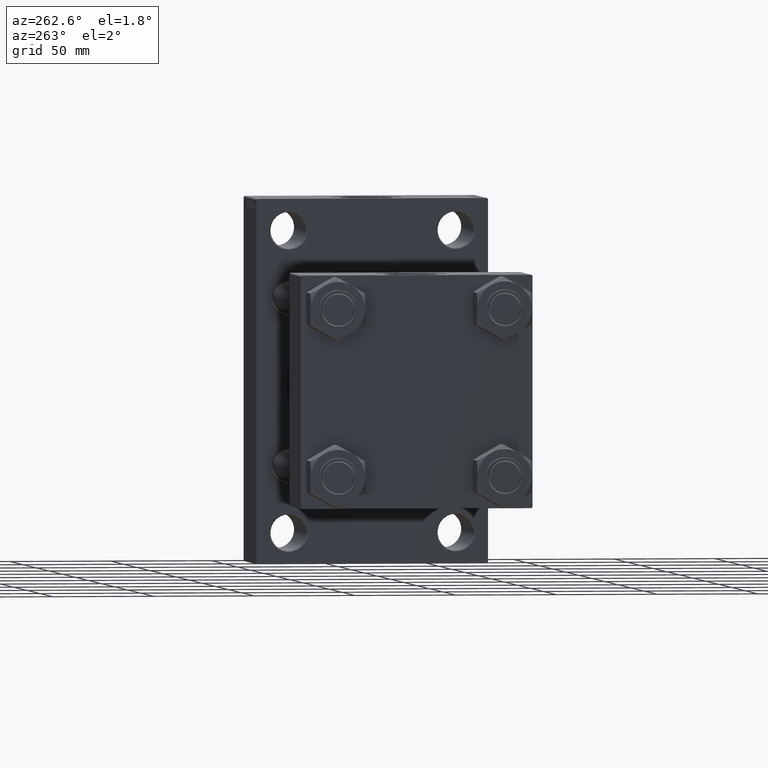
[diagram: clean part render]
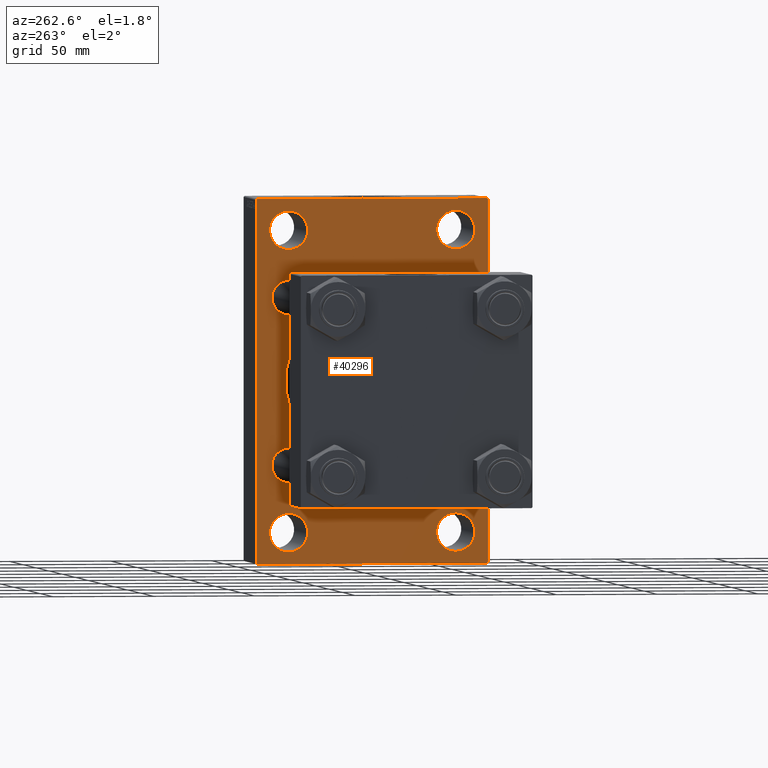
[diagram: same view with one face highlighted and labeled with its STEP entity id]
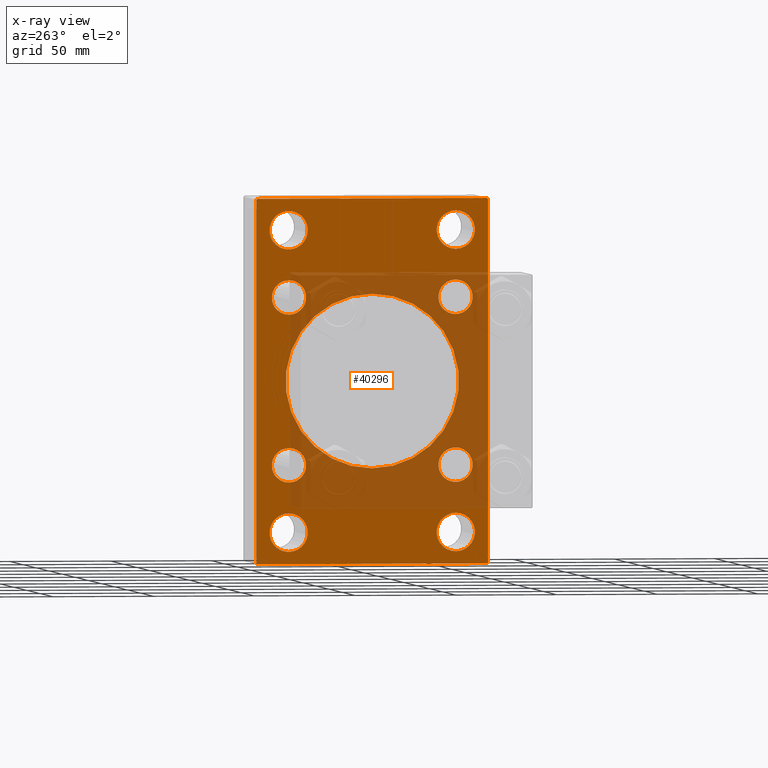
[diagram: x-ray of the same camera — body ghosted, the highlighted face saturated]
A machine part, auxiliary view. The second image highlights one B-rep face of the part: STEP entity #40296.
The next image is the same camera in x-ray: the body ghosted, the highlighted face saturated — about 39% of this face is hidden behind the body in this view.
In plain terms, the highlighted planar face has unit normal (-1, 0, 0).
Its self-contained STEP definition (entity closure, byte-faithful):
#796 = CARTESIAN_POINT ( 'NONE',  ( 169.9999999999999716, 41.49999999999999289, -74.49999999999998579 ) ) ;
#1082 = CARTESIAN_POINT ( 'NONE',  ( 169.9999999999999716, 41.49999999999999289, -83.99999999999998579 ) ) ;
#1093 = CARTESIAN_POINT ( 'NONE',  ( 169.9999999999999716, -41.34999999999998721, 49.85000000000001563 ) ) ;
#1111 = DIRECTION ( 'NONE',  ( 0.000000000000000000, 0.000000000000000000, -1.000000000000000000 ) ) ;
#1664 = CARTESIAN_POINT ( 'NONE',  ( 169.9999999999999716, -56.99999999999994316, 90.00000000000000000 ) ) ;
#1731 = AXIS2_PLACEMENT_3D ( 'NONE', #3899, #44387, #41250 ) ;
#1748 = CIRCLE ( 'NONE', #8694, 9.500000000000008882 ) ;
#1926 = CARTESIAN_POINT ( 'NONE',  ( 169.9999999999999716, 2.663896022368408223E-15, -43.00000000000000000 ) ) ;
#1937 = EDGE_LOOP ( 'NONE', ( #3497, #2461 ) ) ;
#2389 = LINE ( 'NONE', #38336, #41527 ) ;
#2461 = ORIENTED_EDGE ( 'NONE', *, *, #34330, .T. ) ;
#2776 = CARTESIAN_POINT ( 'NONE',  ( 169.9999999999999716, -57.50000000000000000, -89.49999999999991473 ) ) ;
#2838 = EDGE_LOOP ( 'NONE', ( #27087, #18156 ) ) ;
#2928 = EDGE_CURVE ( 'NONE', #15701, #36372, #40823, .T. ) ;
#2967 = DIRECTION ( 'NONE',  ( 1.000000000000000000, 0.000000000000000000, 0.000000000000000000 ) ) ;
#3497 = ORIENTED_EDGE ( 'NONE', *, *, #7788, .T. ) ;
#3566 = EDGE_LOOP ( 'NONE', ( #5495, #41740, #30726, #47436, #34863, #42800, #15348, #7408 ) ) ;
#3899 = CARTESIAN_POINT ( 'NONE',  ( 169.9999999999999716, -41.50000000000000711, -74.49999999999998579 ) ) ;
#4073 = CIRCLE ( 'NONE', #26392, 8.500000000000007105 ) ;
#4234 = VECTOR ( 'NONE', #34725, 1000.000000000000114 ) ;
#4320 = EDGE_CURVE ( 'NONE', #8992, #25618, #34646, .T. ) ;
#4740 = ORIENTED_EDGE ( 'NONE', *, *, #26754, .T. ) ;
#4818 = CARTESIAN_POINT ( 'NONE',  ( 169.9999999999999716, 57.50000000000000000, 90.00000000000000000 ) ) ;
#4940 = DIRECTION ( 'NONE',  ( 1.000000000000000000, 0.000000000000000000, 0.000000000000000000 ) ) ;
#5279 = DIRECTION ( 'NONE',  ( 1.000000000000000000, 0.000000000000000000, 0.000000000000000000 ) ) ;
#5456 = VERTEX_POINT ( 'NONE', #13275 ) ;
#5491 = LINE ( 'NONE', #31525, #24856 ) ;
#5495 = ORIENTED_EDGE ( 'NONE', *, *, #11113, .T. ) ;
#5793 = VERTEX_POINT ( 'NONE', #1664 ) ;
#6247 = CARTESIAN_POINT ( 'NONE',  ( 169.9999999999999716, 73.49999999999997158, 73.49999999999997158 ) ) ;
#6342 = CIRCLE ( 'NONE', #28698, 8.500000000000007105 ) ;
#6589 = FACE_BOUND ( 'NONE', #2838, .T. ) ;
#6622 = EDGE_CURVE ( 'NONE', #8228, #7629, #20875, .T. ) ;
#6807 = VERTEX_POINT ( 'NONE', #1926 ) ;
#7021 = AXIS2_PLACEMENT_3D ( 'NONE', #11480, #22341, #1111 ) ;
#7045 = DIRECTION ( 'NONE',  ( 1.000000000000000000, 0.000000000000000000, 0.000000000000000000 ) ) ;
#7064 = FACE_OUTER_BOUND ( 'NONE', #3566, .T. ) ;
#7191 = VERTEX_POINT ( 'NONE', #14372 ) ;
#7257 = DIRECTION ( 'NONE',  ( 1.000000000000000000, 0.000000000000000000, 0.000000000000000000 ) ) ;
#7324 = CARTESIAN_POINT ( 'NONE',  ( 169.9999999999999716, 41.34999999999999432, -49.85000000000000853 ) ) ;
#7408 = ORIENTED_EDGE ( 'NONE', *, *, #43483, .T. ) ;
#7523 = AXIS2_PLACEMENT_3D ( 'NONE', #10208, #39387, #47088 ) ;
#7629 = VERTEX_POINT ( 'NONE', #7324 ) ;
#7782 = ORIENTED_EDGE ( 'NONE', *, *, #9797, .T. ) ;
#7788 = EDGE_CURVE ( 'NONE', #18531, #28208, #13222, .T. ) ;
#7997 = CIRCLE ( 'NONE', #16465, 9.500000000000008882 ) ;
#8228 = VERTEX_POINT ( 'NONE', #19671 ) ;
#8256 = DIRECTION ( 'NONE',  ( 0.000000000000000000, 0.000000000000000000, -1.000000000000000000 ) ) ;
#8492 = CARTESIAN_POINT ( 'NONE',  ( 169.9999999999999716, -73.49999999999995737, 73.49999999999995737 ) ) ;
#8694 = AXIS2_PLACEMENT_3D ( 'NONE', #20097, #15995, #8753 ) ;
#8750 = VERTEX_POINT ( 'NONE', #33308 ) ;
#8753 = DIRECTION ( 'NONE',  ( 0.000000000000000000, 0.000000000000000000, 1.000000000000000000 ) ) ;
#8992 = VERTEX_POINT ( 'NONE', #12022 ) ;
#9009 = CARTESIAN_POINT ( 'NONE',  ( 169.9999999999999716, -41.50000000000000711, -64.99999999999997158 ) ) ;
#9452 = AXIS2_PLACEMENT_3D ( 'NONE', #43216, #7045, #21045 ) ;
#9622 = CIRCLE ( 'NONE', #38133, 8.500000000000007105 ) ;
#9797 = EDGE_CURVE ( 'NONE', #8750, #20098, #6342, .T. ) ;
#9822 = EDGE_LOOP ( 'NONE', ( #38901, #14058 ) ) ;
#10089 = CARTESIAN_POINT ( 'NONE',  ( 169.9999999999999716, -41.34999999999998721, -32.84999999999999432 ) ) ;
#10113 = VERTEX_POINT ( 'NONE', #9009 ) ;
#10117 = DIRECTION ( 'NONE',  ( 0.000000000000000000, 0.000000000000000000, 1.000000000000000000 ) ) ;
#10208 = CARTESIAN_POINT ( 'NONE',  ( 169.9999999999999716, 0.000000000000000000, 0.000000000000000000 ) ) ;
#10408 = DIRECTION ( 'NONE',  ( 1.000000000000000000, 0.000000000000000000, 0.000000000000000000 ) ) ;
#10774 = EDGE_LOOP ( 'NONE', ( #22692, #44180 ) ) ;
#10919 = FACE_BOUND ( 'NONE', #45995, .T. ) ;
#11113 = EDGE_CURVE ( 'NONE', #11493, #37600, #30026, .T. ) ;
#11167 = LINE ( 'NONE', #17945, #42904 ) ;
#11404 = DIRECTION ( 'NONE',  ( -0.000000000000000000, 0.7071067811865474617, 0.7071067811865474617 ) ) ;
#11444 = DIRECTION ( 'NONE',  ( 1.000000000000000000, 0.000000000000000000, 0.000000000000000000 ) ) ;
#11480 = CARTESIAN_POINT ( 'NONE',  ( 169.9999999999999716, -2.602085213965210642E-15, 0.000000000000000000 ) ) ;
#11493 = VERTEX_POINT ( 'NONE', #23442 ) ;
#11559 = CARTESIAN_POINT ( 'NONE',  ( 169.9999999999999716, 57.50000000000000000, 89.49999999999997158 ) ) ;
#11801 = AXIS2_PLACEMENT_3D ( 'NONE', #42402, #5279, #30836 ) ;
#12022 = CARTESIAN_POINT ( 'NONE',  ( 169.9999999999999716, 41.49999999999999289, 65.00000000000000000 ) ) ;
#12204 = ORIENTED_EDGE ( 'NONE', *, *, #31145, .T. ) ;
#12530 = DIRECTION ( 'NONE',  ( -0.000000000000000000, -0.7071067811865474617, -0.7071067811865474617 ) ) ;
#13017 = DIRECTION ( 'NONE',  ( 1.000000000000000000, 0.000000000000000000, 0.000000000000000000 ) ) ;
#13222 = CIRCLE ( 'NONE', #30168, 9.500000000000008882 ) ;
#13275 = CARTESIAN_POINT ( 'NONE',  ( 169.9999999999999716, 56.99999999999997158, 90.00000000000000000 ) ) ;
#13336 = CIRCLE ( 'NONE', #22621, 9.500000000000008882 ) ;
#13831 = CARTESIAN_POINT ( 'NONE',  ( 169.9999999999999716, 41.34999999999999432, -41.34999999999999432 ) ) ;
#13850 = AXIS2_PLACEMENT_3D ( 'NONE', #25905, #33378, #26371 ) ;
#13969 = EDGE_CURVE ( 'NONE', #42988, #10113, #33296, .T. ) ;
#14058 = ORIENTED_EDGE ( 'NONE', *, *, #13969, .T. ) ;
#14093 = ORIENTED_EDGE ( 'NONE', *, *, #37293, .T. ) ;
#14331 = DIRECTION ( 'NONE',  ( 1.000000000000000000, 0.000000000000000000, 0.000000000000000000 ) ) ;
#14372 = CARTESIAN_POINT ( 'NONE',  ( 169.9999999999999716, -41.34999999999998721, 32.84999999999999432 ) ) ;
#14425 = EDGE_CURVE ( 'NONE', #37600, #25556, #5491, .T. ) ;
#14474 = AXIS2_PLACEMENT_3D ( 'NONE', #26870, #4940, #23258 ) ;
#15317 = EDGE_CURVE ( 'NONE', #6807, #23431, #22599, .T. ) ;
#15323 = CARTESIAN_POINT ( 'NONE',  ( 169.9999999999999716, -41.50000000000000711, 65.00000000000000000 ) ) ;
#15348 = ORIENTED_EDGE ( 'NONE', *, *, #2928, .T. ) ;
#15604 = DIRECTION ( 'NONE',  ( 0.000000000000000000, 0.000000000000000000, 1.000000000000000000 ) ) ;
#15701 = VERTEX_POINT ( 'NONE', #11559 ) ;
#15775 = CARTESIAN_POINT ( 'NONE',  ( 169.9999999999999716, 41.49999999999999289, 74.50000000000001421 ) ) ;
#15995 = DIRECTION ( 'NONE',  ( 1.000000000000000000, 0.000000000000000000, 0.000000000000000000 ) ) ;
#16276 = CIRCLE ( 'NONE', #7021, 43.00000000000000000 ) ;
#16291 = EDGE_CURVE ( 'NONE', #25618, #8992, #7997, .T. ) ;
#16465 = AXIS2_PLACEMENT_3D ( 'NONE', #15775, #11444, #37258 ) ;
#16596 = EDGE_LOOP ( 'NONE', ( #24640, #22517 ) ) ;
#17011 = ORIENTED_EDGE ( 'NONE', *, *, #25809, .T. ) ;
#17453 = FACE_BOUND ( 'NONE', #30879, .T. ) ;
#17945 = CARTESIAN_POINT ( 'NONE',  ( 169.9999999999999716, -57.50000000000000000, 90.00000000000000000 ) ) ;
#18156 = ORIENTED_EDGE ( 'NONE', *, *, #21621, .T. ) ;
#18208 = EDGE_CURVE ( 'NONE', #23431, #6807, #16276, .T. ) ;
#18378 = CARTESIAN_POINT ( 'NONE',  ( 169.9999999999999716, -57.50000000000000000, 89.49999999999994316 ) ) ;
#18504 = EDGE_CURVE ( 'NONE', #7191, #44173, #18637, .T. ) ;
#18531 = VERTEX_POINT ( 'NONE', #39420 ) ;
#18637 = CIRCLE ( 'NONE', #29400, 8.500000000000007105 ) ;
#18875 = VERTEX_POINT ( 'NONE', #18378 ) ;
#18957 = CARTESIAN_POINT ( 'NONE',  ( 169.9999999999999716, -41.34999999999998721, -41.35000000000000142 ) ) ;
#19055 = CARTESIAN_POINT ( 'NONE',  ( 169.9999999999999716, -2.602085213965210642E-15, 43.00000000000000000 ) ) ;
#19416 = CARTESIAN_POINT ( 'NONE',  ( 169.9999999999999716, 57.50000000000000000, -90.00000000000000000 ) ) ;
#19465 = DIRECTION ( 'NONE',  ( 1.000000000000000000, 0.000000000000000000, 0.000000000000000000 ) ) ;
#19671 = CARTESIAN_POINT ( 'NONE',  ( 169.9999999999999716, 41.34999999999999432, -32.84999999999998721 ) ) ;
#19815 = CARTESIAN_POINT ( 'NONE',  ( 169.9999999999999716, -2.602085213965210642E-15, 0.000000000000000000 ) ) ;
#20097 = CARTESIAN_POINT ( 'NONE',  ( 169.9999999999999716, -41.50000000000000711, 74.50000000000001421 ) ) ;
#20098 = VERTEX_POINT ( 'NONE', #35639 ) ;
#20875 = CIRCLE ( 'NONE', #27829, 8.500000000000007105 ) ;
#21045 = DIRECTION ( 'NONE',  ( 0.000000000000000000, 0.000000000000000000, 1.000000000000000000 ) ) ;
#21069 = FACE_BOUND ( 'NONE', #10774, .T. ) ;
#21265 = VECTOR ( 'NONE', #45319, 1000.000000000000000 ) ;
#21508 = VECTOR ( 'NONE', #8256, 1000.000000000000000 ) ;
#21621 = EDGE_CURVE ( 'NONE', #7629, #8228, #4073, .T. ) ;
#21784 = FACE_BOUND ( 'NONE', #16596, .T. ) ;
#22109 = DIRECTION ( 'NONE',  ( 1.000000000000000000, 0.000000000000000000, 0.000000000000000000 ) ) ;
#22341 = DIRECTION ( 'NONE',  ( 1.000000000000000000, 0.000000000000000000, 0.000000000000000000 ) ) ;
#22517 = ORIENTED_EDGE ( 'NONE', *, *, #4320, .T. ) ;
#22599 = CIRCLE ( 'NONE', #40285, 43.00000000000000000 ) ;
#22621 = AXIS2_PLACEMENT_3D ( 'NONE', #36712, #2967, #46836 ) ;
#22692 = ORIENTED_EDGE ( 'NONE', *, *, #18208, .T. ) ;
#23161 = EDGE_LOOP ( 'NONE', ( #4740, #34408 ) ) ;
#23258 = DIRECTION ( 'NONE',  ( 0.000000000000000000, 0.000000000000000000, 1.000000000000000000 ) ) ;
#23431 = VERTEX_POINT ( 'NONE', #19055 ) ;
#23442 = CARTESIAN_POINT ( 'NONE',  ( 169.9999999999999716, 56.99999999999994316, -90.00000000000000000 ) ) ;
#24469 = VERTEX_POINT ( 'NONE', #43086 ) ;
#24640 = ORIENTED_EDGE ( 'NONE', *, *, #16291, .T. ) ;
#24674 = FACE_BOUND ( 'NONE', #1937, .T. ) ;
#24856 = VECTOR ( 'NONE', #34911, 1000.000000000000114 ) ;
#25556 = VERTEX_POINT ( 'NONE', #2776 ) ;
#25618 = VERTEX_POINT ( 'NONE', #26365 ) ;
#25719 = EDGE_CURVE ( 'NONE', #24469, #44030, #1748, .T. ) ;
#25809 = EDGE_CURVE ( 'NONE', #44030, #24469, #37220, .T. ) ;
#25905 = CARTESIAN_POINT ( 'NONE',  ( 169.9999999999999716, 41.49999999999999289, 74.50000000000001421 ) ) ;
#25923 = CARTESIAN_POINT ( 'NONE',  ( 169.9999999999999716, -41.34999999999998721, -49.85000000000001563 ) ) ;
#26234 = EDGE_CURVE ( 'NONE', #10113, #42988, #13336, .T. ) ;
#26365 = CARTESIAN_POINT ( 'NONE',  ( 169.9999999999999716, 41.49999999999999289, 84.00000000000001421 ) ) ;
#26371 = DIRECTION ( 'NONE',  ( 0.000000000000000000, 0.000000000000000000, 1.000000000000000000 ) ) ;
#26392 = AXIS2_PLACEMENT_3D ( 'NONE', #28213, #13017, #10117 ) ;
#26754 = EDGE_CURVE ( 'NONE', #44173, #7191, #32593, .T. ) ;
#26870 = CARTESIAN_POINT ( 'NONE',  ( 169.9999999999999716, -41.34999999999998721, -41.35000000000000142 ) ) ;
#27087 = ORIENTED_EDGE ( 'NONE', *, *, #6622, .T. ) ;
#27829 = AXIS2_PLACEMENT_3D ( 'NONE', #13831, #7257, #46393 ) ;
#28208 = VERTEX_POINT ( 'NONE', #1082 ) ;
#28213 = CARTESIAN_POINT ( 'NONE',  ( 169.9999999999999716, 41.34999999999999432, -41.34999999999999432 ) ) ;
#28698 = AXIS2_PLACEMENT_3D ( 'NONE', #37789, #19465, #15604 ) ;
#29023 = FACE_BOUND ( 'NONE', #35867, .T. ) ;
#29400 = AXIS2_PLACEMENT_3D ( 'NONE', #47361, #14331, #43273 ) ;
#29734 = DIRECTION ( 'NONE',  ( 1.000000000000000000, 0.000000000000000000, 0.000000000000000000 ) ) ;
#29947 = DIRECTION ( 'NONE',  ( 0.000000000000000000, 0.000000000000000000, -1.000000000000000000 ) ) ;
#29974 = CARTESIAN_POINT ( 'NONE',  ( 169.9999999999999716, 57.50000000000000000, 90.00000000000000000 ) ) ;
#29976 = EDGE_CURVE ( 'NONE', #5456, #15701, #31819, .T. ) ;
#30026 = LINE ( 'NONE', #19416, #32436 ) ;
#30168 = AXIS2_PLACEMENT_3D ( 'NONE', #36210, #10408, #36447 ) ;
#30258 = DIRECTION ( 'NONE',  ( 0.000000000000000000, -1.000000000000000000, 0.000000000000000000 ) ) ;
#30726 = ORIENTED_EDGE ( 'NONE', *, *, #39462, .F. ) ;
#30836 = DIRECTION ( 'NONE',  ( 0.000000000000000000, 0.000000000000000000, 1.000000000000000000 ) ) ;
#30879 = EDGE_LOOP ( 'NONE', ( #32908, #17011 ) ) ;
#31145 = EDGE_CURVE ( 'NONE', #20098, #8750, #9622, .T. ) ;
#31525 = CARTESIAN_POINT ( 'NONE',  ( 169.9999999999999716, -73.49999999999997158, -73.49999999999997158 ) ) ;
#31819 = LINE ( 'NONE', #6247, #4234 ) ;
#32154 = ORIENTED_EDGE ( 'NONE', *, *, #44095, .T. ) ;
#32436 = VECTOR ( 'NONE', #30258, 1000.000000000000000 ) ;
#32593 = CIRCLE ( 'NONE', #11801, 8.500000000000007105 ) ;
#32908 = ORIENTED_EDGE ( 'NONE', *, *, #25719, .T. ) ;
#33296 = CIRCLE ( 'NONE', #1731, 9.500000000000008882 ) ;
#33308 = CARTESIAN_POINT ( 'NONE',  ( 169.9999999999999716, 41.34999999999999432, 32.84999999999998721 ) ) ;
#33378 = DIRECTION ( 'NONE',  ( 1.000000000000000000, 0.000000000000000000, 0.000000000000000000 ) ) ;
#33616 = CIRCLE ( 'NONE', #35171, 9.500000000000008882 ) ;
#33668 = EDGE_CURVE ( 'NONE', #5456, #5793, #41700, .T. ) ;
#34330 = EDGE_CURVE ( 'NONE', #28208, #18531, #33616, .T. ) ;
#34408 = ORIENTED_EDGE ( 'NONE', *, *, #18504, .T. ) ;
#34646 = CIRCLE ( 'NONE', #13850, 9.500000000000008882 ) ;
#34725 = DIRECTION ( 'NONE',  ( 0.000000000000000000, 0.7071067811865474617, -0.7071067811865474617 ) ) ;
#34863 = ORIENTED_EDGE ( 'NONE', *, *, #33668, .F. ) ;
#34911 = DIRECTION ( 'NONE',  ( 0.000000000000000000, -0.7071067811865474617, 0.7071067811865474617 ) ) ;
#35171 = AXIS2_PLACEMENT_3D ( 'NONE', #796, #29734, #44431 ) ;
#35639 = CARTESIAN_POINT ( 'NONE',  ( 169.9999999999999716, 41.34999999999999432, 49.85000000000000853 ) ) ;
#35867 = EDGE_LOOP ( 'NONE', ( #14093, #32154 ) ) ;
#36210 = CARTESIAN_POINT ( 'NONE',  ( 169.9999999999999716, 41.49999999999999289, -74.49999999999998579 ) ) ;
#36372 = VERTEX_POINT ( 'NONE', #38440 ) ;
#36447 = DIRECTION ( 'NONE',  ( 0.000000000000000000, 0.000000000000000000, 1.000000000000000000 ) ) ;
#36502 = DIRECTION ( 'NONE',  ( 0.000000000000000000, 0.000000000000000000, -1.000000000000000000 ) ) ;
#36712 = CARTESIAN_POINT ( 'NONE',  ( 169.9999999999999716, -41.50000000000000711, -74.49999999999998579 ) ) ;
#36716 = VERTEX_POINT ( 'NONE', #10089 ) ;
#37220 = CIRCLE ( 'NONE', #9452, 9.500000000000008882 ) ;
#37258 = DIRECTION ( 'NONE',  ( 0.000000000000000000, 0.000000000000000000, 1.000000000000000000 ) ) ;
#37293 = EDGE_CURVE ( 'NONE', #36716, #38363, #39131, .T. ) ;
#37600 = VERTEX_POINT ( 'NONE', #44704 ) ;
#37747 = DIRECTION ( 'NONE',  ( 0.000000000000000000, 0.000000000000000000, 1.000000000000000000 ) ) ;
#37789 = CARTESIAN_POINT ( 'NONE',  ( 169.9999999999999716, 41.34999999999999432, 41.34999999999999432 ) ) ;
#38133 = AXIS2_PLACEMENT_3D ( 'NONE', #44273, #22109, #40430 ) ;
#38336 = CARTESIAN_POINT ( 'NONE',  ( 169.9999999999999716, 73.49999999999995737, -73.49999999999995737 ) ) ;
#38363 = VERTEX_POINT ( 'NONE', #25923 ) ;
#38440 = CARTESIAN_POINT ( 'NONE',  ( 169.9999999999999716, 57.50000000000000000, -89.49999999999988631 ) ) ;
#38901 = ORIENTED_EDGE ( 'NONE', *, *, #26234, .T. ) ;
#39131 = CIRCLE ( 'NONE', #14474, 8.500000000000007105 ) ;
#39387 = DIRECTION ( 'NONE',  ( -1.000000000000000000, 0.000000000000000000, -0.000000000000000000 ) ) ;
#39420 = CARTESIAN_POINT ( 'NONE',  ( 169.9999999999999716, 41.49999999999999289, -64.99999999999997158 ) ) ;
#39462 = EDGE_CURVE ( 'NONE', #18875, #25556, #11167, .T. ) ;
#39642 = EDGE_CURVE ( 'NONE', #18875, #5793, #45145, .T. ) ;
#39863 = FACE_BOUND ( 'NONE', #9822, .T. ) ;
#40285 = AXIS2_PLACEMENT_3D ( 'NONE', #19815, #45120, #29947 ) ;
#40296 = ADVANCED_FACE ( 'NONE', ( #17453, #39863, #24674, #21784, #43478, #10919, #6589, #29023, #21069, #7064 ), #43713, .T. ) ;
#40430 = DIRECTION ( 'NONE',  ( 0.000000000000000000, 0.000000000000000000, 1.000000000000000000 ) ) ;
#40823 = LINE ( 'NONE', #29974, #21508 ) ;
#41250 = DIRECTION ( 'NONE',  ( 0.000000000000000000, 0.000000000000000000, 1.000000000000000000 ) ) ;
#41527 = VECTOR ( 'NONE', #12530, 1000.000000000000114 ) ;
#41700 = LINE ( 'NONE', #4818, #21265 ) ;
#41740 = ORIENTED_EDGE ( 'NONE', *, *, #14425, .T. ) ;
#42289 = CIRCLE ( 'NONE', #43832, 8.500000000000007105 ) ;
#42402 = CARTESIAN_POINT ( 'NONE',  ( 169.9999999999999716, -41.34999999999998721, 41.35000000000000142 ) ) ;
#42800 = ORIENTED_EDGE ( 'NONE', *, *, #29976, .T. ) ;
#42904 = VECTOR ( 'NONE', #36502, 1000.000000000000000 ) ;
#42988 = VERTEX_POINT ( 'NONE', #45494 ) ;
#43086 = CARTESIAN_POINT ( 'NONE',  ( 169.9999999999999716, -41.50000000000000711, 84.00000000000001421 ) ) ;
#43216 = CARTESIAN_POINT ( 'NONE',  ( 169.9999999999999716, -41.50000000000000711, 74.50000000000001421 ) ) ;
#43273 = DIRECTION ( 'NONE',  ( 0.000000000000000000, 0.000000000000000000, 1.000000000000000000 ) ) ;
#43478 = FACE_BOUND ( 'NONE', #23161, .T. ) ;
#43483 = EDGE_CURVE ( 'NONE', #36372, #11493, #2389, .T. ) ;
#43713 = PLANE ( 'NONE',  #7523 ) ;
#43832 = AXIS2_PLACEMENT_3D ( 'NONE', #18957, #44493, #37747 ) ;
#44030 = VERTEX_POINT ( 'NONE', #15323 ) ;
#44095 = EDGE_CURVE ( 'NONE', #38363, #36716, #42289, .T. ) ;
#44173 = VERTEX_POINT ( 'NONE', #1093 ) ;
#44180 = ORIENTED_EDGE ( 'NONE', *, *, #15317, .T. ) ;
#44273 = CARTESIAN_POINT ( 'NONE',  ( 169.9999999999999716, 41.34999999999999432, 41.34999999999999432 ) ) ;
#44387 = DIRECTION ( 'NONE',  ( 1.000000000000000000, 0.000000000000000000, 0.000000000000000000 ) ) ;
#44431 = DIRECTION ( 'NONE',  ( 0.000000000000000000, 0.000000000000000000, 1.000000000000000000 ) ) ;
#44493 = DIRECTION ( 'NONE',  ( 1.000000000000000000, 0.000000000000000000, 0.000000000000000000 ) ) ;
#44704 = CARTESIAN_POINT ( 'NONE',  ( 169.9999999999999716, -56.99999999999997158, -90.00000000000000000 ) ) ;
#45120 = DIRECTION ( 'NONE',  ( 1.000000000000000000, 0.000000000000000000, 0.000000000000000000 ) ) ;
#45145 = LINE ( 'NONE', #8492, #47516 ) ;
#45319 = DIRECTION ( 'NONE',  ( 0.000000000000000000, -1.000000000000000000, 0.000000000000000000 ) ) ;
#45494 = CARTESIAN_POINT ( 'NONE',  ( 169.9999999999999716, -41.50000000000000711, -83.99999999999998579 ) ) ;
#45995 = EDGE_LOOP ( 'NONE', ( #12204, #7782 ) ) ;
#46393 = DIRECTION ( 'NONE',  ( 0.000000000000000000, 0.000000000000000000, 1.000000000000000000 ) ) ;
#46836 = DIRECTION ( 'NONE',  ( 0.000000000000000000, 0.000000000000000000, 1.000000000000000000 ) ) ;
#47088 = DIRECTION ( 'NONE',  ( -0.000000000000000000, 0.000000000000000000, 1.000000000000000000 ) ) ;
#47361 = CARTESIAN_POINT ( 'NONE',  ( 169.9999999999999716, -41.34999999999998721, 41.35000000000000142 ) ) ;
#47436 = ORIENTED_EDGE ( 'NONE', *, *, #39642, .T. ) ;
#47516 = VECTOR ( 'NONE', #11404, 1000.000000000000114 ) ;